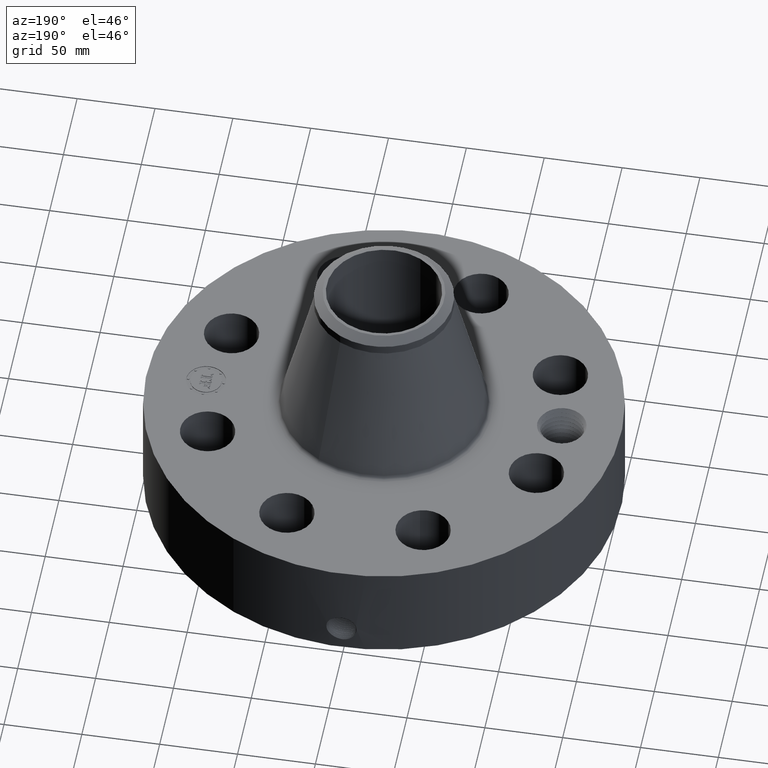
[diagram: clean part render]
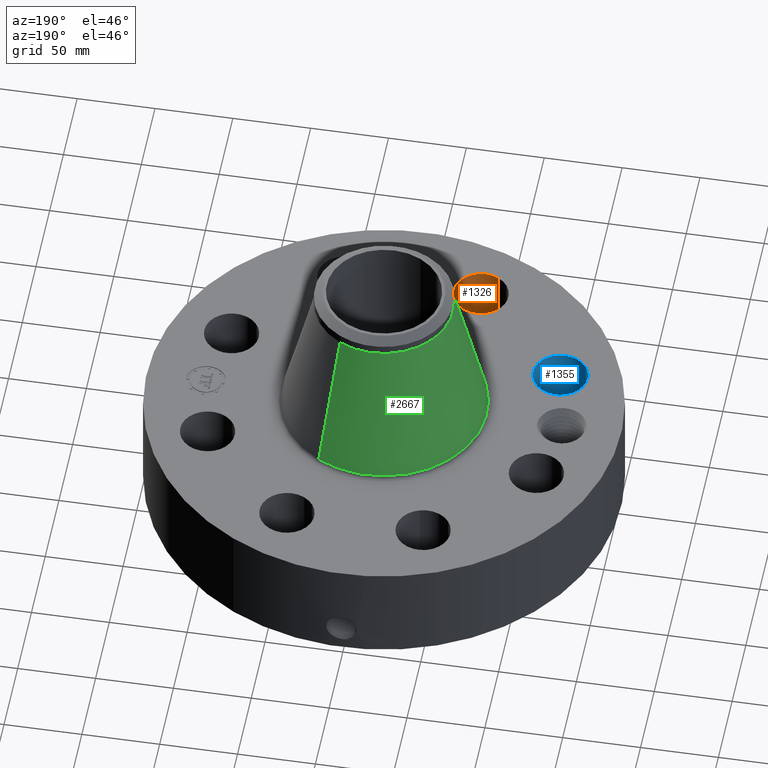
[diagram: same view with three faces highlighted in distinct colors, each labeled with its STEP entity id]
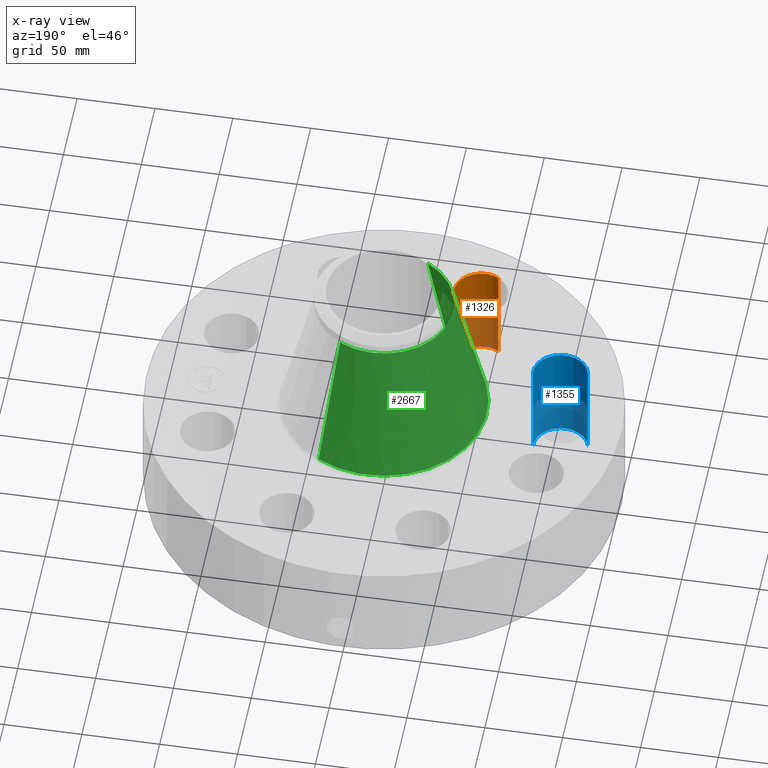
[diagram: x-ray of the same camera — body ghosted, the three highlighted faces saturated]
A machine part, auxiliary view with three faces highlighted in distinct colors.
The next image is the same camera in x-ray (body ghosted, the three faces saturated) — at least one of them is partly hidden behind the body in this view.
Their STEP definitions:

[orange] entity #1326 — the highlighted cylindrical surface (edge-blend (fillet) strip) has radius 17.526 mm, axis along (0, -0, -1).
#282=AXIS2_PLACEMENT_3D('Circle Axis2P3D',#280,#281,$) ;
#612=AXIS2_PLACEMENT_3D('Circle Axis2P3D',#610,#611,$) ;
#1308=AXIS2_PLACEMENT_3D('Cylinder Axis2P3D',#1305,#1306,#1307) ;
#280=CARTESIAN_POINT('Axis2P3D Location',(-1.72207544565,-4.15745789632,0.250000000001)) ;
#284=CARTESIAN_POINT('Vertex',(-1.39127182401,-3.55192592861,0.250000000001)) ;
#286=CARTESIAN_POINT('Vertex',(-2.05287906729,-4.76298986402,0.250000000001)) ;
#605=CARTESIAN_POINT('Vertex',(-2.05287906729,-4.76298986402,2.87000000001)) ;
#607=CARTESIAN_POINT('Vertex',(-1.39127182401,-3.55192592861,2.87000000001)) ;
#610=CARTESIAN_POINT('Axis2P3D Location',(-1.72207544565,-4.15745789632,2.87000000001)) ;
#1305=CARTESIAN_POINT('Axis2P3D Location',(-1.72207544565,-4.15745789632,2.86606299214)) ;
#1310=CARTESIAN_POINT('Line Origine',(-1.39127182401,-3.55192592861,1.56000000001)) ;
#1315=CARTESIAN_POINT('Line Origine',(-2.05287906729,-4.76298986402,1.56000000001)) ;
#281=DIRECTION('Axis2P3D Direction',(0.,0.,-0.0393700787402)) ;
#611=DIRECTION('Axis2P3D Direction',(0.,0.,-0.0393700787402)) ;
#1306=DIRECTION('Axis2P3D Direction',(0.,-0.,-0.0393700787402)) ;
#1307=DIRECTION('Axis2P3D XDirection',(-0.0188750212049,-0.0345504945626,0.)) ;
#1311=DIRECTION('Vector Direction',(0.,0.,-0.0393700787402)) ;
#1316=DIRECTION('Vector Direction',(0.,0.,-0.0393700787402)) ;
#1312=VECTOR('Line Direction',#1311,0.0393700787402) ;
#1317=VECTOR('Line Direction',#1316,0.0393700787402) ;
#1321=ORIENTED_EDGE('',*,*,#1314,.F.) ;
#1322=ORIENTED_EDGE('',*,*,#288,.T.) ;
#1323=ORIENTED_EDGE('',*,*,#1319,.T.) ;
#1324=ORIENTED_EDGE('',*,*,#614,.F.) ;
#1326=ADVANCED_FACE('PartBody',(#1325),#1309,.F.) ;
#283=CIRCLE('generated circle',#282,0.690000000003) ;
#613=CIRCLE('generated circle',#612,0.690000000003) ;
#1309=CYLINDRICAL_SURFACE('generated cylinder',#1308,0.690000000003) ;
#288=EDGE_CURVE('',#285,#287,#283,.T.) ;
#614=EDGE_CURVE('',#608,#606,#613,.T.) ;
#1314=EDGE_CURVE('',#285,#608,#1313,.F.) ;
#1319=EDGE_CURVE('',#287,#606,#1318,.F.) ;
#1320=EDGE_LOOP('',(#1321,#1322,#1323,#1324)) ;
#1325=FACE_OUTER_BOUND('',#1320,.T.) ;
#1313=LINE('Line',#1310,#1312) ;
#1318=LINE('Line',#1315,#1317) ;
#285=VERTEX_POINT('',#284) ;
#287=VERTEX_POINT('',#286) ;
#606=VERTEX_POINT('',#605) ;
#608=VERTEX_POINT('',#607) ;

[blue] entity #1355 — the highlighted cylindrical surface (edge-blend (fillet) strip) has radius 17.526 mm, axis along (-0, 0, -1).
#300=AXIS2_PLACEMENT_3D('Circle Axis2P3D',#298,#299,$) ;
#630=AXIS2_PLACEMENT_3D('Circle Axis2P3D',#628,#629,$) ;
#1337=AXIS2_PLACEMENT_3D('Cylinder Axis2P3D',#1334,#1335,#1336) ;
#298=CARTESIAN_POINT('Axis2P3D Location',(-4.15745789632,-1.72207544565,0.250000000001)) ;
#302=CARTESIAN_POINT('Vertex',(-3.49536865163,-1.52781316916,0.250000000001)) ;
#304=CARTESIAN_POINT('Vertex',(-4.81954714101,-1.91633772214,0.250000000001)) ;
#623=CARTESIAN_POINT('Vertex',(-4.81954714101,-1.91633772214,2.87000000001)) ;
#625=CARTESIAN_POINT('Vertex',(-3.49536865163,-1.52781316916,2.87000000001)) ;
#628=CARTESIAN_POINT('Axis2P3D Location',(-4.15745789632,-1.72207544565,2.87000000001)) ;
#1334=CARTESIAN_POINT('Axis2P3D Location',(-4.15745789632,-1.72207544565,2.86606299214)) ;
#1339=CARTESIAN_POINT('Line Origine',(-3.49536865163,-1.52781316916,1.56000000001)) ;
#1344=CARTESIAN_POINT('Line Origine',(-4.81954714101,-1.91633772214,1.56000000001)) ;
#299=DIRECTION('Axis2P3D Direction',(0.,0.,-0.0393700787402)) ;
#629=DIRECTION('Axis2P3D Direction',(0.,0.,-0.0393700787402)) ;
#1335=DIRECTION('Axis2P3D Direction',(-0.,0.,-0.0393700787402)) ;
#1336=DIRECTION('Axis2P3D XDirection',(-0.0377775444876,-0.0110842335096,0.)) ;
#1340=DIRECTION('Vector Direction',(0.,0.,-0.0393700787402)) ;
#1345=DIRECTION('Vector Direction',(0.,0.,-0.0393700787402)) ;
#1341=VECTOR('Line Direction',#1340,0.0393700787402) ;
#1346=VECTOR('Line Direction',#1345,0.0393700787402) ;
#1350=ORIENTED_EDGE('',*,*,#1343,.F.) ;
#1351=ORIENTED_EDGE('',*,*,#306,.T.) ;
#1352=ORIENTED_EDGE('',*,*,#1348,.T.) ;
#1353=ORIENTED_EDGE('',*,*,#632,.F.) ;
#1355=ADVANCED_FACE('PartBody',(#1354),#1338,.F.) ;
#301=CIRCLE('generated circle',#300,0.690000000003) ;
#631=CIRCLE('generated circle',#630,0.690000000003) ;
#1338=CYLINDRICAL_SURFACE('generated cylinder',#1337,0.690000000003) ;
#306=EDGE_CURVE('',#303,#305,#301,.T.) ;
#632=EDGE_CURVE('',#626,#624,#631,.T.) ;
#1343=EDGE_CURVE('',#303,#626,#1342,.F.) ;
#1348=EDGE_CURVE('',#305,#624,#1347,.F.) ;
#1349=EDGE_LOOP('',(#1350,#1351,#1352,#1353)) ;
#1354=FACE_OUTER_BOUND('',#1349,.T.) ;
#1342=LINE('Line',#1339,#1341) ;
#1347=LINE('Line',#1344,#1346) ;
#303=VERTEX_POINT('',#302) ;
#305=VERTEX_POINT('',#304) ;
#624=VERTEX_POINT('',#623) ;
#626=VERTEX_POINT('',#625) ;

[green] entity #2667 — the highlighted conical surface has half-angle 13.683 deg.
#1904=AXIS2_PLACEMENT_3D('Circle Axis2P3D',#1902,#1903,$) ;
#2628=AXIS2_PLACEMENT_3D('Cone Axis2P3D',#2625,#2626,#2627) ;
#2658=AXIS2_PLACEMENT_3D('Circle Axis2P3D',#2656,#2657,$) ;
#1880=CARTESIAN_POINT('Vertex',(1.24779873299,2.28408025991,2.96161381106)) ;
#1887=CARTESIAN_POINT('Vertex',(-1.24779873299,-2.28408025991,2.96161381106)) ;
#1902=CARTESIAN_POINT('Axis2P3D Location',(0.,0.,2.96161381106)) ;
#2625=CARTESIAN_POINT('Axis2P3D Location',(0.,0.,6.46400087906)) ;
#2630=CARTESIAN_POINT('Line Origine',(1.04339671278,1.90992487161,4.71280734506)) ;
#2634=CARTESIAN_POINT('Vertex',(0.838994692561,1.53576948331,6.46400087906)) ;
#2641=CARTESIAN_POINT('Vertex',(-0.838994692561,-1.53576948331,6.46400087906)) ;
#2644=CARTESIAN_POINT('Line Origine',(-1.04339671278,-1.90992487161,4.71280734506)) ;
#2656=CARTESIAN_POINT('Axis2P3D Location',(0.,0.,6.46400087906)) ;
#1903=DIRECTION('Axis2P3D Direction',(0.,0.,-0.0393700787402)) ;
#2626=DIRECTION('Axis2P3D Direction',(0.,0.,-0.0393700787402)) ;
#2627=DIRECTION('Axis2P3D XDirection',(-0.0188750212049,-0.0345504945626,0.)) ;
#2631=DIRECTION('Vector Direction',(0.00446491598683,0.00817297389236,-0.0382527139298)) ;
#2645=DIRECTION('Vector Direction',(-0.00446491598683,-0.00817297389236,-0.0382527139298)) ;
#2657=DIRECTION('Axis2P3D Direction',(0.,0.,-0.0393700787402)) ;
#2632=VECTOR('Line Direction',#2631,0.0393700787402) ;
#2646=VECTOR('Line Direction',#2645,0.0393700787402) ;
#2662=ORIENTED_EDGE('',*,*,#1906,.F.) ;
#2663=ORIENTED_EDGE('',*,*,#2648,.T.) ;
#2664=ORIENTED_EDGE('',*,*,#2660,.T.) ;
#2665=ORIENTED_EDGE('',*,*,#2636,.F.) ;
#2667=ADVANCED_FACE('PartBody',(#2666),#2629,.T.) ;
#1905=CIRCLE('generated circle',#1904,2.60269558569) ;
#2659=CIRCLE('generated circle',#2658,1.75000000001) ;
#2629=CONICAL_SURFACE('Cone',#2628,1.75000000001,0.238815154699) ;
#1906=EDGE_CURVE('',#1888,#1881,#1905,.T.) ;
#2636=EDGE_CURVE('',#1881,#2635,#2633,.F.) ;
#2648=EDGE_CURVE('',#1888,#2642,#2647,.F.) ;
#2660=EDGE_CURVE('',#2642,#2635,#2659,.T.) ;
#2661=EDGE_LOOP('',(#2662,#2663,#2664,#2665)) ;
#2666=FACE_OUTER_BOUND('',#2661,.T.) ;
#2633=LINE('Line',#2630,#2632) ;
#2647=LINE('Line',#2644,#2646) ;
#1881=VERTEX_POINT('',#1880) ;
#1888=VERTEX_POINT('',#1887) ;
#2635=VERTEX_POINT('',#2634) ;
#2642=VERTEX_POINT('',#2641) ;